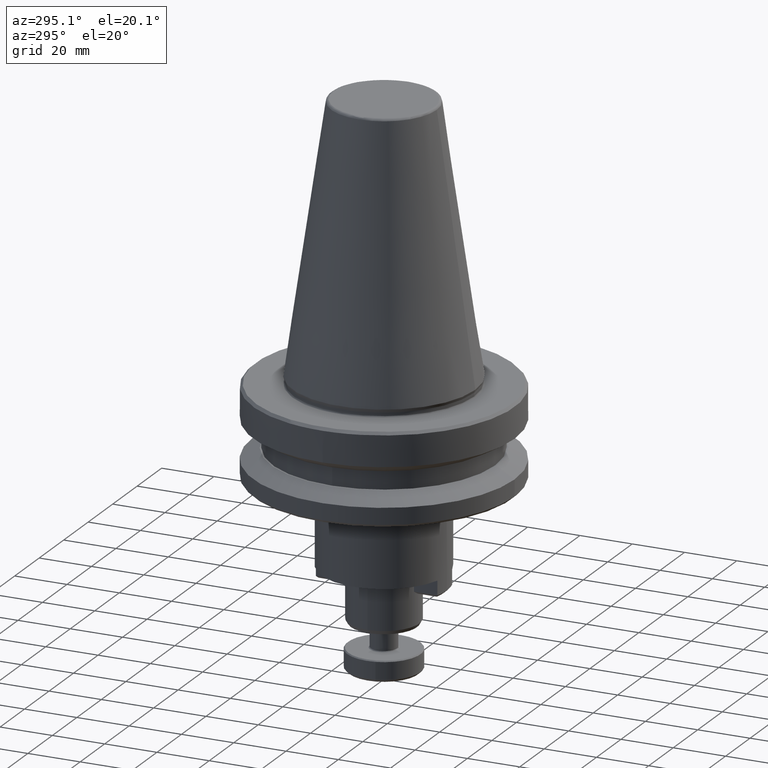
[diagram: clean part render]
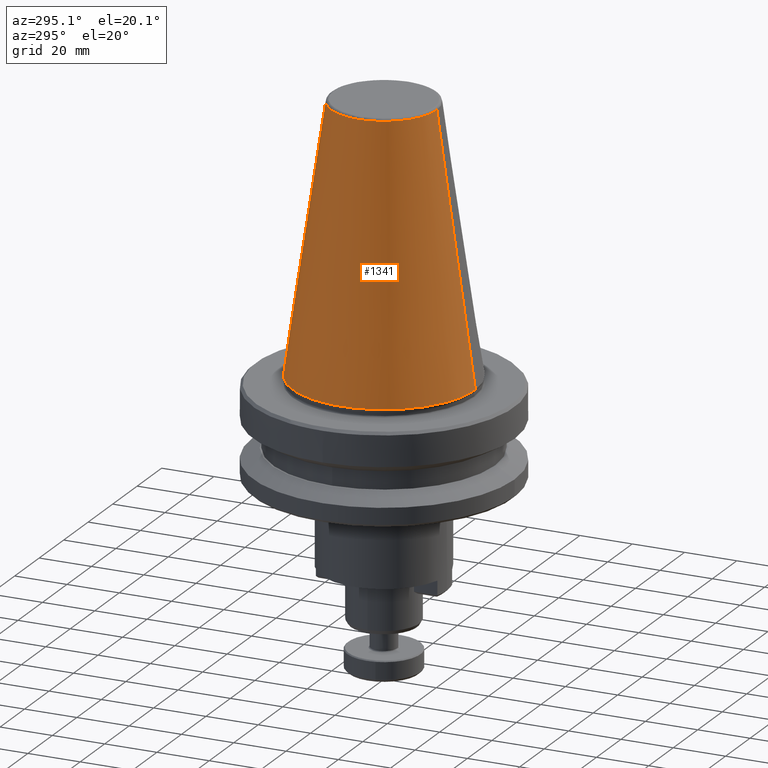
[diagram: same view with one face highlighted and labeled with its STEP entity id]
A machine part, auxiliary view. The second image highlights one B-rep face of the part: STEP entity #1341.
In plain terms, the highlighted conical surface has half-angle 8.297 deg.
Its self-contained STEP definition (entity closure, byte-faithful):
#35 = DIRECTION ( 'NONE',  ( -0.0000000000000000000, 3.434447178715200600E-016, 1.000000000000000000 ) ) ;
#46 = DIRECTION ( 'NONE',  ( 0.0000000000000000000, 0.1443082272630900900, -0.9895327864927893100 ) ) ;
#70 = DIRECTION ( 'NONE',  ( 0.0000000000000000000, -3.434447178715197200E-016, -1.000000000000000000 ) ) ;
#140 = VECTOR ( 'NONE', #164, 1000.000000000000100 ) ;
#157 = CARTESIAN_POINT ( 'NONE',  ( 4.277078946022131700E-015, -34.92500000000004000, 1.011182573551119800E-014 ) ) ;
#164 = DIRECTION ( 'NONE',  ( 1.767266086083724700E-017, -0.1443082272630907300, -0.9895327864927892000 ) ) ;
#188 = ORIENTED_EDGE ( 'NONE', *, *, #2778, .T. ) ;
#272 = CARTESIAN_POINT ( 'NONE',  ( 0.0000000000000000000, 34.92499999999996900, -1.387778780781445700E-014 ) ) ;
#333 = CARTESIAN_POINT ( 'NONE',  ( 0.0000000000000000000, 20.20381605199234800, 100.9443082270525000 ) ) ;
#410 = CARTESIAN_POINT ( 'NONE',  ( 0.0000000000000000000, 1.802670427946452800E-026, 100.9443082270525000 ) ) ;
#460 = FACE_OUTER_BOUND ( 'NONE', #2653, .T. ) ;
#466 = DIRECTION ( 'NONE',  ( 0.0000000000000000000, -3.434447178715200600E-016, -1.000000000000000000 ) ) ;
#475 = CARTESIAN_POINT ( 'NONE',  ( -20.20381605190140200, -6.803195510588241100E-010, 100.9443082270192500 ) ) ;
#547 = CARTESIAN_POINT ( 'NONE',  ( 0.0000000000000000000, -3.469446951953614200E-014, -1.882981036151629500E-015 ) ) ;
#554 = VERTEX_POINT ( 'NONE', #776 ) ;
#774 = LINE ( 'NONE', #157, #140 ) ;
#775 = VERTEX_POINT ( 'NONE', #1031 ) ;
#776 = CARTESIAN_POINT ( 'NONE',  ( 4.277078946022131700E-015, -34.92500000000004000, 1.199480677166284000E-014 ) ) ;
#789 = CARTESIAN_POINT ( 'NONE',  ( 0.0000000000000000000, 1.175895786845070700E-026, 100.9443082270342700 ) ) ;
#902 = LINE ( 'NONE', #272, #2503 ) ;
#941 = CIRCLE ( 'NONE', #1053, 20.20381605199500500 ) ;
#1031 = CARTESIAN_POINT ( 'NONE',  ( 0.0000000000000000000, 34.92499999999996900, -1.199480677166284000E-014 ) ) ;
#1038 = VERTEX_POINT ( 'NONE', #333 ) ;
#1053 = AXIS2_PLACEMENT_3D ( 'NONE', #789, #466, #1793 ) ;
#1128 = ORIENTED_EDGE ( 'NONE', *, *, #2617, .T. ) ;
#1272 = DIRECTION ( 'NONE',  ( 0.0000000000000000000, 1.000000000000000000, -3.434447178715197200E-016 ) ) ;
#1335 = ORIENTED_EDGE ( 'NONE', *, *, #2661, .T. ) ;
#1341 = ADVANCED_FACE ( 'NONE', ( #460 ), #1508, .T. ) ;
#1407 = DIRECTION ( 'NONE',  ( 0.0000000000000000000, 1.000000000000000000, -3.973597081693473100E-016 ) ) ;
#1508 = CONICAL_SURFACE ( 'NONE', #2214, 34.92500000000000400, 0.1448138465431578800 ) ;
#1581 = DIRECTION ( 'NONE',  ( 0.0000000000000000000, 1.000000000000000000, 0.0000000000000000000 ) ) ;
#1597 = ORIENTED_EDGE ( 'NONE', *, *, #2671, .T. ) ;
#1615 = CARTESIAN_POINT ( 'NONE',  ( 0.0000000000000000000, -3.466878945975778700E-014, 0.0000000000000000000 ) ) ;
#1655 = AXIS2_PLACEMENT_3D ( 'NONE', #410, #1967, #1581 ) ;
#1793 = DIRECTION ( 'NONE',  ( 0.0000000000000000000, 1.000000000000000000, 0.0000000000000000000 ) ) ;
#1842 = VERTEX_POINT ( 'NONE', #2242 ) ;
#1967 = DIRECTION ( 'NONE',  ( 0.0000000000000000000, -3.434447178715200600E-016, -1.000000000000000000 ) ) ;
#2038 = CIRCLE ( 'NONE', #2318, 34.92500000000000400 ) ;
#2104 = ORIENTED_EDGE ( 'NONE', *, *, #2352, .F. ) ;
#2166 = CIRCLE ( 'NONE', #1655, 20.20381605199234800 ) ;
#2214 = AXIS2_PLACEMENT_3D ( 'NONE', #547, #70, #1272 ) ;
#2242 = CARTESIAN_POINT ( 'NONE',  ( 3.375666405942896000E-015, -20.20381605199500500, 100.9443082270342700 ) ) ;
#2318 = AXIS2_PLACEMENT_3D ( 'NONE', #1615, #35, #1407 ) ;
#2352 = EDGE_CURVE ( 'NONE', #1842, #554, #774, .T. ) ;
#2503 = VECTOR ( 'NONE', #46, 1000.000000000000200 ) ;
#2600 = VERTEX_POINT ( 'NONE', #475 ) ;
#2617 = EDGE_CURVE ( 'NONE', #2600, #1038, #2166, .T. ) ;
#2653 = EDGE_LOOP ( 'NONE', ( #2104, #188, #1128, #1597, #1335 ) ) ;
#2661 = EDGE_CURVE ( 'NONE', #775, #554, #2038, .T. ) ;
#2671 = EDGE_CURVE ( 'NONE', #1038, #775, #902, .T. ) ;
#2778 = EDGE_CURVE ( 'NONE', #1842, #2600, #941, .T. ) ;